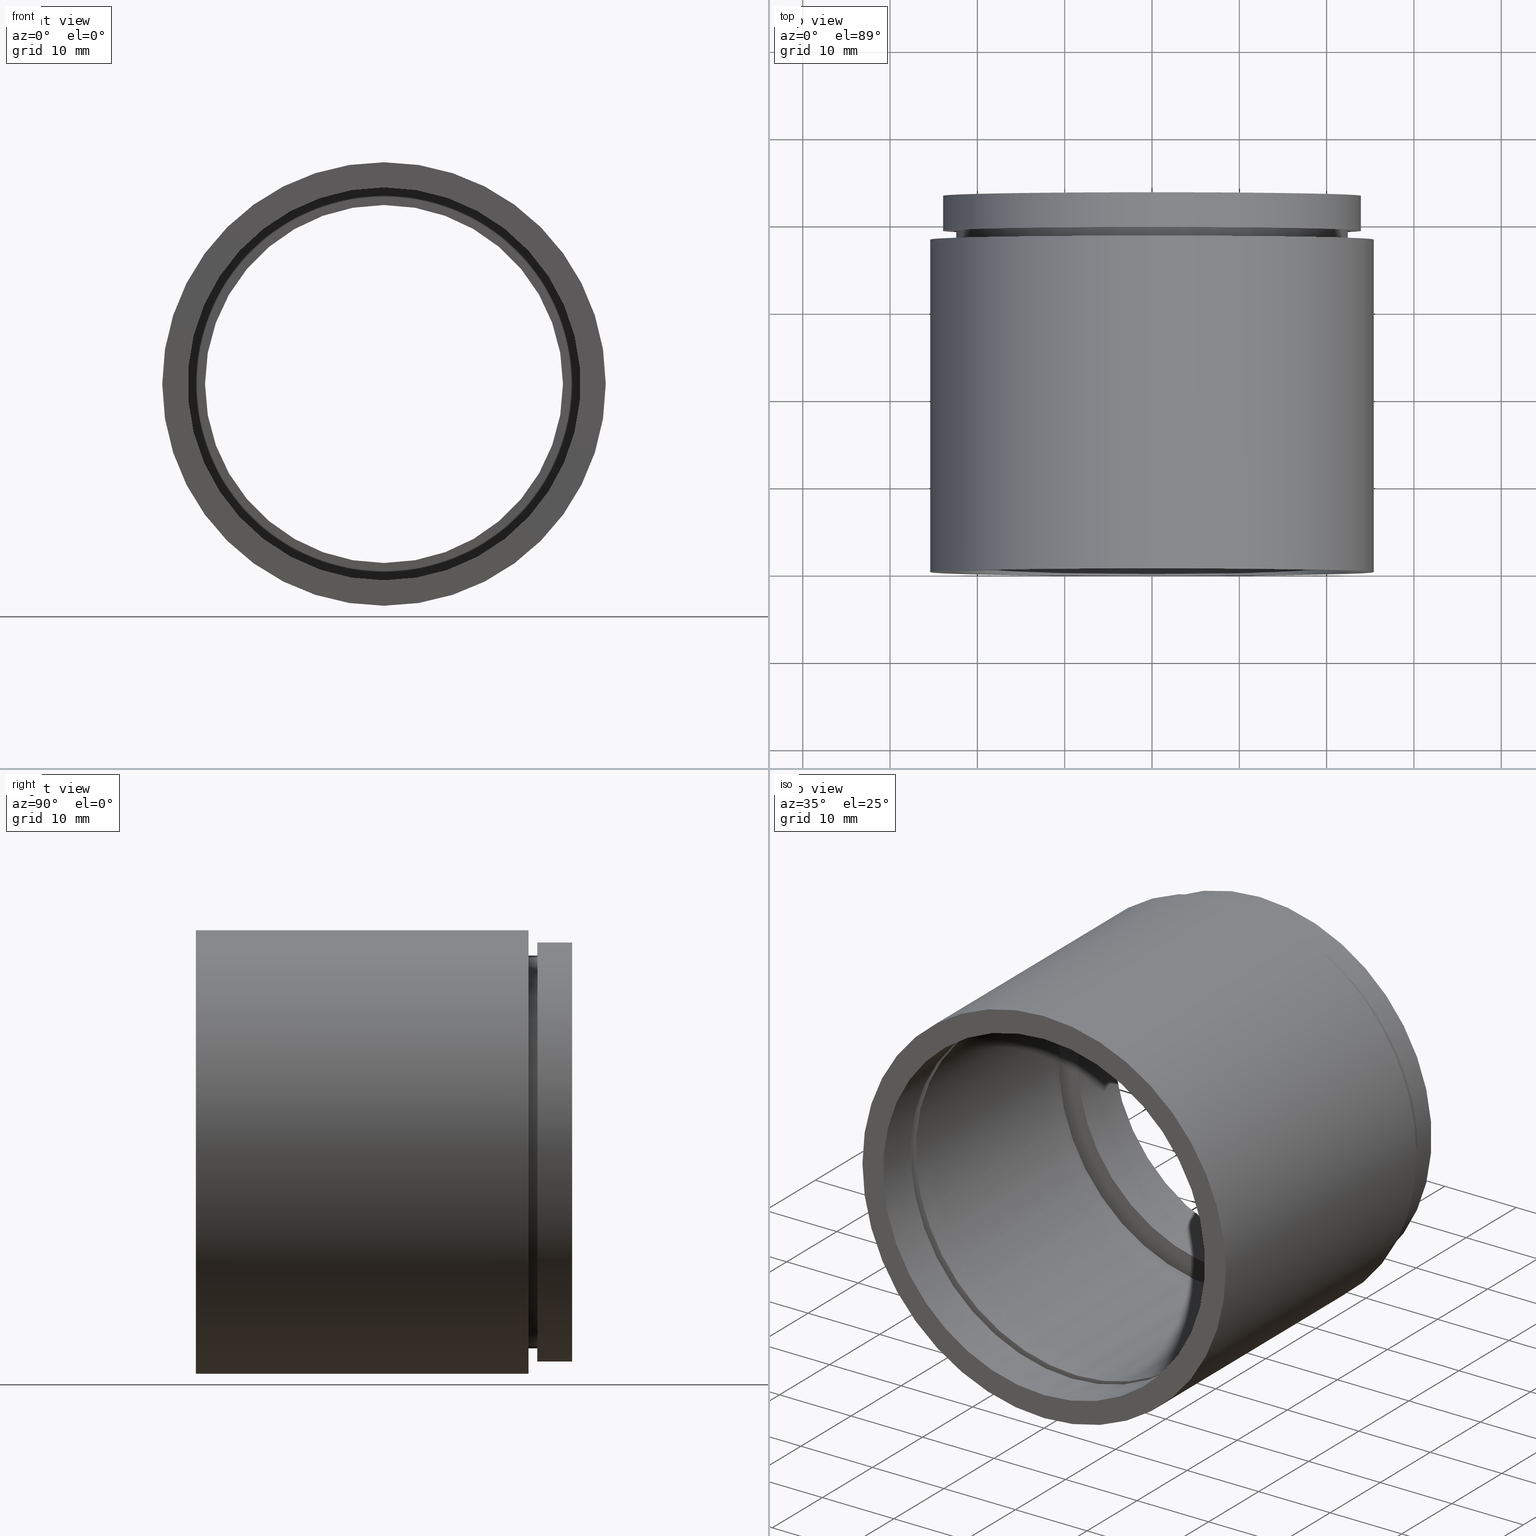
[diagram: canonical four-view strip — front | top / right | iso, engineering-drawing reading convention]
A machine part, canonical four-view strip (front | top / right | iso — engineering-drawing reading convention). The complete STEP part file that produces these views, byte-faithful:
ISO-10303-21;
HEADER;
FILE_DESCRIPTION (( 'STEP AP214' ),
    '1' );
FILE_NAME ('503013.STEP',
    '2019-09-04T08:31:47',
    ( '' ),
    ( '' ),
    'SwSTEP 2.0',
    'SolidWorks 2016',
    '' );
FILE_SCHEMA (( 'AUTOMOTIVE_DESIGN' ));
ENDSEC;

DATA;
#1 = ADVANCED_FACE ( 'NONE', ( #93, #112 ), #177, .F. ) ;
#2 = VECTOR ( 'NONE', #423, 1000.000000000000000 ) ;
#3 = ORIENTED_EDGE ( 'NONE', *, *, #67, .T. ) ;
#4 = VERTEX_POINT ( 'NONE', #107 ) ;
#5 = DIRECTION ( 'NONE',  ( -0.0000000000000000000, 1.000000000000000000, -0.0000000000000000000 ) ) ;
#6 = CARTESIAN_POINT ( 'NONE',  ( 0.0000000000000000000, 5.499999999999976900, 22.50000000000002100 ) ) ;
#7 = SURFACE_SIDE_STYLE ('',( #575 ) ) ;
#8 = EDGE_CURVE ( 'NONE', #137, #349, #341, .T. ) ;
#9 = EDGE_CURVE ( 'NONE', #356, #752, #155, .T. ) ;
#10 = PRESENTATION_STYLE_ASSIGNMENT (( #68 ) ) ;
#11 = ORIENTED_EDGE ( 'NONE', *, *, #230, .T. ) ;
#12 = SURFACE_SIDE_STYLE ('',( #29 ) ) ;
#13 = CARTESIAN_POINT ( 'NONE',  ( 0.0000000000000000000, 6.499999999999977800, 23.49999999999986500 ) ) ;
#14 = AXIS2_PLACEMENT_3D ( 'NONE', #87, #601, #226 ) ;
#15 = EDGE_CURVE ( 'NONE', #609, #4, #65, .T. ) ;
#16 = DIRECTION ( 'NONE',  ( -0.0000000000000000000, 1.000000000000000000, 0.0000000000000000000 ) ) ;
#17 = PLANE ( 'NONE',  #95 ) ;
#18 = FACE_BOUND ( 'NONE', #641, .T. ) ;
#19 = CARTESIAN_POINT ( 'NONE',  ( 2.877919977996263800E-015, 161.3761669434274500, -23.49999999999986500 ) ) ;
#20 = COLOUR_RGB ( '',1.000000000000000000, 1.000000000000000000, 1.000000000000000000 ) ;
#21 = CIRCLE ( 'NONE', #76, 22.50000000000002100 ) ;
#22 = ORIENTED_EDGE ( 'NONE', *, *, #649, .T. ) ;
#23 = AXIS2_PLACEMENT_3D ( 'NONE', #761, #5, #124 ) ;
#24 = ORIENTED_EDGE ( 'NONE', *, *, #218, .T. ) ;
#25 = CARTESIAN_POINT ( 'NONE',  ( 0.0000000000000000000, 35.09999999999999400, 0.0000000000000000000 ) ) ;
#26 = DIRECTION ( 'NONE',  ( 0.0000000000000000000, 0.0000000000000000000, 1.000000000000000000 ) ) ;
#27 = DIRECTION ( 'NONE',  ( 0.0000000000000000000, 0.0000000000000000000, 1.000000000000000000 ) ) ;
#28 = CARTESIAN_POINT ( 'NONE',  ( 0.0000000000000000000, 161.3761669434274500, 0.0000000000000000000 ) ) ;
#29 = SURFACE_STYLE_FILL_AREA ( #530 ) ;
#30 = LINE ( 'NONE', #545, #2 ) ;
#31 = CARTESIAN_POINT ( 'NONE',  ( 0.0000000000000000000, 39.09999999999999400, 0.0000000000000000000 ) ) ;
#32 = PRESENTATION_STYLE_ASSIGNMENT (( #78 ) ) ;
#33 = ORIENTED_EDGE ( 'NONE', *, *, #230, .F. ) ;
#34 = ORIENTED_EDGE ( 'NONE', *, *, #570, .T. ) ;
#35 = SURFACE_SIDE_STYLE ('',( #372 ) ) ;
#36 = ADVANCED_FACE ( 'NONE', ( #741 ), #384, .T. ) ;
#37 = MANIFOLD_SOLID_BREP ( '��ת1', #654 ) ;
#38 = DIRECTION ( 'NONE',  ( 0.0000000000000000000, 0.0000000000000000000, 1.000000000000000000 ) ) ;
#39 = AXIS2_PLACEMENT_3D ( 'NONE', #577, #508, #568 ) ;
#40 = STYLED_ITEM ( 'NONE', ( #246 ), #284 ) ;
#41 = DIRECTION ( 'NONE',  ( -0.0000000000000000000, 1.000000000000000000, -0.0000000000000000000 ) ) ;
#42 = CIRCLE ( 'NONE', #115, 22.50000000000002100 ) ;
#43 = CIRCLE ( 'NONE', #557, 22.50000000000002100 ) ;
#44 = AXIS2_PLACEMENT_3D ( 'NONE', #615, #235, #729 ) ;
#45 = ORIENTED_EDGE ( 'NONE', *, *, #8, .F. ) ;
#46 =( LENGTH_UNIT ( ) NAMED_UNIT ( * ) SI_UNIT ( .MILLI., .METRE. ) );
#47 = EDGE_LOOP ( 'NONE', ( #66, #762, #318, #506 ) ) ;
#48 = EDGE_CURVE ( 'NONE', #662, #83, #438, .T. ) ;
#49 = CARTESIAN_POINT ( 'NONE',  ( 0.0000000000000000000, 39.09999999999999400, 22.49999999999988600 ) ) ;
#50 = AXIS2_PLACEMENT_3D ( 'NONE', #381, #813, #754 ) ;
#51 = CIRCLE ( 'NONE', #216, 22.50000000000002100 ) ;
#52 = CIRCLE ( 'NONE', #343, 22.50000000000002100 ) ;
#53 = SURFACE_STYLE_FILL_AREA ( #325 ) ;
#54 = ORIENTED_EDGE ( 'NONE', *, *, #746, .T. ) ;
#55 = ORIENTED_EDGE ( 'NONE', *, *, #236, .T. ) ;
#56 = CARTESIAN_POINT ( 'NONE',  ( 0.0000000000000000000, 36.09999999999999400, 24.00000000000001400 ) ) ;
#57 = AXIS2_PLACEMENT_3D ( 'NONE', #403, #774, #271 ) ;
#58 = DIRECTION ( 'NONE',  ( -0.0000000000000000000, 1.000000000000000000, -0.0000000000000000000 ) ) ;
#59 = AXIS2_PLACEMENT_3D ( 'NONE', #114, #241, #253 ) ;
#60 = DIRECTION ( 'NONE',  ( 0.0000000000000000000, 0.0000000000000000000, 1.000000000000000000 ) ) ;
#61 = VECTOR ( 'NONE', #613, 1000.000000000000000 ) ;
#62 = SURFACE_SIDE_STYLE ('',( #799 ) ) ;
#63 = PRODUCT_DEFINITION ( 'δ֪', '', #324, #378 ) ;
#64 = ORIENTED_EDGE ( 'NONE', *, *, #772, .T. ) ;
#65 = CIRCLE ( 'NONE', #23, 24.00000000000001400 ) ;
#66 = ORIENTED_EDGE ( 'NONE', *, *, #218, .F. ) ;
#67 = EDGE_CURVE ( 'NONE', #83, #673, #538, .T. ) ;
#68 = SURFACE_STYLE_USAGE ( .BOTH. , #192 ) ;
#69 = COLOUR_RGB ( '',1.000000000000000000, 1.000000000000000000, 1.000000000000000000 ) ;
#70 = VECTOR ( 'NONE', #579, 1000.000000000000000 ) ;
#71 = ADVANCED_FACE ( 'NONE', ( #316 ), #699, .F. ) ;
#72 = CARTESIAN_POINT ( 'NONE',  ( 0.0000000000000000000, 161.3761669434274500, 0.0000000000000000000 ) ) ;
#73 = VERTEX_POINT ( 'NONE', #685 ) ;
#74 = EDGE_LOOP ( 'NONE', ( #225, #175 ) ) ;
#75 = CARTESIAN_POINT ( 'NONE',  ( 0.0000000000000000000, 161.3761669434274500, 0.0000000000000000000 ) ) ;
#76 = AXIS2_PLACEMENT_3D ( 'NONE', #362, #41, #105 ) ;
#77 = DIRECTION ( 'NONE',  ( -0.0000000000000000000, 1.000000000000000000, -0.0000000000000000000 ) ) ;
#78 = SURFACE_STYLE_USAGE ( .BOTH. , #638 ) ;
#79 = AXIS2_PLACEMENT_3D ( 'NONE', #764, #693, #695 ) ;
#80 = PRESENTATION_LAYER_ASSIGNMENT (  '', '', ( #40 ) ) ;
#81 = FACE_OUTER_BOUND ( 'NONE', #518, .T. ) ;
#82 = ORIENTED_EDGE ( 'NONE', *, *, #453, .F. ) ;
#83 = VERTEX_POINT ( 'NONE', #569 ) ;
#84 = ORIENTED_EDGE ( 'NONE', *, *, #649, .F. ) ;
#85 = AXIS2_PLACEMENT_3D ( 'NONE', #197, #572, #692 ) ;
#86 = EDGE_CURVE ( 'NONE', #702, #233, #515, .T. ) ;
#87 = CARTESIAN_POINT ( 'NONE',  ( 0.0000000000000000000, 161.3761669434274500, 0.0000000000000000000 ) ) ;
#88 = FILL_AREA_STYLE_COLOUR ( '', #493 ) ;
#89 = DIRECTION ( 'NONE',  ( 0.0000000000000000000, 0.0000000000000000000, 1.000000000000000000 ) ) ;
#90 = COLOUR_RGB ( '',1.000000000000000000, 1.000000000000000000, 1.000000000000000000 ) ;
#91 = EDGE_CURVE ( 'NONE', #702, #432, #640, .T. ) ;
#92 = ORIENTED_EDGE ( 'NONE', *, *, #707, .F. ) ;
#93 = FACE_BOUND ( 'NONE', #224, .T. ) ;
#94 = FILL_AREA_STYLE ('',( #219 ) ) ;
#95 = AXIS2_PLACEMENT_3D ( 'NONE', #647, #513, #410 ) ;
#96 = CARTESIAN_POINT ( 'NONE',  ( 0.0000000000000000000, 161.3761669434274500, 0.0000000000000000000 ) ) ;
#97 = CIRCLE ( 'NONE', #388, 24.00000000000001400 ) ;
#98 = AXIS2_PLACEMENT_3D ( 'NONE', #516, #704, #394 ) ;
#99 = ADVANCED_FACE ( 'NONE', ( #263, #223 ), #250, .F. ) ;
#100 = LINE ( 'NONE', #370, #61 ) ;
#101 = EDGE_CURVE ( 'NONE', #550, #4, #168, .T. ) ;
#102 = VERTEX_POINT ( 'NONE', #13 ) ;
#103 = ORIENTED_EDGE ( 'NONE', *, *, #612, .F. ) ;
#104 = EDGE_LOOP ( 'NONE', ( #624, #121 ) ) ;
#105 = DIRECTION ( 'NONE',  ( 0.0000000000000000000, 0.0000000000000000000, 1.000000000000000000 ) ) ;
#106 = STYLED_ITEM ( 'NONE', ( #414 ), #37 ) ;
#107 = CARTESIAN_POINT ( 'NONE',  ( 2.939152317953649500E-015, 36.09999999999999400, -24.00000000000001400 ) ) ;
#108 = CYLINDRICAL_SURFACE ( 'NONE', #242, 24.00000000000001400 ) ;
#109 = CYLINDRICAL_SURFACE ( 'NONE', #361, 22.50000000000002100 ) ;
#110 = FACE_OUTER_BOUND ( 'NONE', #724, .T. ) ;
#111 = DIRECTION ( 'NONE',  ( -0.0000000000000000000, 1.000000000000000000, -0.0000000000000000000 ) ) ;
#112 = FACE_OUTER_BOUND ( 'NONE', #807, .T. ) ;
#113 = ORIENTED_EDGE ( 'NONE', *, *, #48, .T. ) ;
#114 = CARTESIAN_POINT ( 'NONE',  ( 0.0000000000000000000, 161.3761669434274500, 0.0000000000000000000 ) ) ;
#115 = AXIS2_PLACEMENT_3D ( 'NONE', #364, #797, #619 ) ;
#116 =( LENGTH_UNIT ( ) NAMED_UNIT ( * ) SI_UNIT ( .MILLI., .METRE. ) );
#117 = CARTESIAN_POINT ( 'NONE',  ( 23.49999999999986500, 6.499999999999985800, 0.0000000000000000000 ) ) ;
#118 = ORIENTED_EDGE ( 'NONE', *, *, #707, .T. ) ;
#119 = VERTEX_POINT ( 'NONE', #336 ) ;
#120 = CARTESIAN_POINT ( 'NONE',  ( 0.0000000000000000000, 5.499999999999976900, 0.0000000000000000000 ) ) ;
#121 = ORIENTED_EDGE ( 'NONE', *, *, #350, .T. ) ;
#122 = CARTESIAN_POINT ( 'NONE',  ( 0.0000000000000000000, 161.3761669434274500, 22.49999999999988600 ) ) ;
#123 = AXIS2_PLACEMENT_3D ( 'NONE', #28, #295, #156 ) ;
#124 = DIRECTION ( 'NONE',  ( 0.0000000000000000000, 0.0000000000000000000, 1.000000000000000000 ) ) ;
#125 = AXIS2_PLACEMENT_3D ( 'NONE', #532, #533, #721 ) ;
#126 = DIRECTION ( 'NONE',  ( 0.0000000000000000000, 0.0000000000000000000, 1.000000000000000000 ) ) ;
#127 = EDGE_LOOP ( 'NONE', ( #606, #635 ) ) ;
#128 = DIRECTION ( 'NONE',  ( 0.0000000000000000000, 0.0000000000000000000, 1.000000000000000000 ) ) ;
#129 =( LENGTH_UNIT ( ) NAMED_UNIT ( * ) SI_UNIT ( .MILLI., .METRE. ) );
#130 = MECHANICAL_DESIGN_GEOMETRIC_PRESENTATION_REPRESENTATION (  '', ( #106 ), #502 ) ;
#131 = AXIS2_PLACEMENT_3D ( 'NONE', #393, #629, #126 ) ;
#132 = FACE_OUTER_BOUND ( 'NONE', #213, .T. ) ;
#133 = DIRECTION ( 'NONE',  ( 0.0000000000000000000, 0.0000000000000000000, 1.000000000000000000 ) ) ;
#134 =( NAMED_UNIT ( * ) SI_UNIT ( $, .STERADIAN. ) SOLID_ANGLE_UNIT ( ) );
#135 = VERTEX_POINT ( 'NONE', #590 ) ;
#136 = ORIENTED_EDGE ( 'NONE', *, *, #425, .T. ) ;
#137 = VERTEX_POINT ( 'NONE', #521 ) ;
#138 = DIRECTION ( 'NONE',  ( -0.0000000000000000000, 1.000000000000000000, -0.0000000000000000000 ) ) ;
#139 = CARTESIAN_POINT ( 'NONE',  ( 0.0000000000000000000, 39.09999999999999400, 0.0000000000000000000 ) ) ;
#140 = DIRECTION ( 'NONE',  ( -0.0000000000000000000, 1.000000000000000000, -0.0000000000000000000 ) ) ;
#141 = DIRECTION ( 'NONE',  ( -0.0000000000000000000, 1.000000000000000000, -0.0000000000000000000 ) ) ;
#142 = PRESENTATION_LAYER_ASSIGNMENT (  '', '', ( #106 ) ) ;
#143 = CIRCLE ( 'NONE', #44, 22.50000000000002100 ) ;
#144 = DIRECTION ( 'NONE',  ( -0.0000000000000000000, 1.000000000000000000, -0.0000000000000000000 ) ) ;
#145 = ADVANCED_FACE ( 'NONE', ( #328 ), #661, .F. ) ;
#146 = VERTEX_POINT ( 'NONE', #203 ) ;
#147 = SURFACE_STYLE_USAGE ( .BOTH. , #12 ) ;
#148 = SURFACE_STYLE_USAGE ( .BOTH. , #656 ) ;
#149 = ADVANCED_FACE ( 'NONE', ( #616, #474 ), #455, .F. ) ;
#150 = DIRECTION ( 'NONE',  ( 1.000000000000000000, 0.0000000000000000000, 0.0000000000000000000 ) ) ;
#151 = SURFACE_STYLE_USAGE ( .BOTH. , #35 ) ;
#152 = DIRECTION ( 'NONE',  ( -0.0000000000000000000, 1.000000000000000000, -0.0000000000000000000 ) ) ;
#153 = DIRECTION ( 'NONE',  ( 0.0000000000000000000, 0.0000000000000000000, 1.000000000000000000 ) ) ;
#154 = ORIENTED_EDGE ( 'NONE', *, *, #181, .F. ) ;
#155 = CIRCLE ( 'NONE', #658, 20.50000000000001400 ) ;
#156 = DIRECTION ( 'NONE',  ( 0.0000000000000000000, 0.0000000000000000000, 1.000000000000000000 ) ) ;
#157 = ORIENTED_EDGE ( 'NONE', *, *, #720, .T. ) ;
#158 = ADVANCED_FACE ( 'NONE', ( #554, #459 ), #17, .F. ) ;
#159 = PRODUCT_CONTEXT ( 'NONE', #717, 'mechanical' ) ;
#160 = DIRECTION ( 'NONE',  ( -0.0000000000000000000, 1.000000000000000000, -0.0000000000000000000 ) ) ;
#161 = AXIS2_PLACEMENT_3D ( 'NONE', #345, #140, #206 ) ;
#162 = MECHANICAL_DESIGN_GEOMETRIC_PRESENTATION_REPRESENTATION (  '', ( #40 ), #251 ) ;
#163 =( NAMED_UNIT ( * ) PLANE_ANGLE_UNIT ( ) SI_UNIT ( $, .RADIAN. ) );
#164 = AXIS2_PLACEMENT_3D ( 'NONE', #499, #374, #377 ) ;
#165 = CIRCLE ( 'NONE', #610, 23.49999999999986500 ) ;
#166 = EDGE_CURVE ( 'NONE', #750, #252, #198, .T. ) ;
#167 = ORIENTED_EDGE ( 'NONE', *, *, #280, .F. ) ;
#168 = LINE ( 'NONE', #711, #70 ) ;
#169 = EDGE_LOOP ( 'NONE', ( #437, #642 ) ) ;
#170 = CARTESIAN_POINT ( 'NONE',  ( 2.510525938252076100E-015, 36.09999999999999400, -20.50000000000001800 ) ) ;
#171 = AXIS2_PLACEMENT_3D ( 'NONE', #511, #697, #60 ) ;
#172 = DIRECTION ( 'NONE',  ( 0.0000000000000000000, 0.0000000000000000000, 1.000000000000000000 ) ) ;
#173 = PRODUCT_RELATED_PRODUCT_CATEGORY ( 'part', '', ( #694 ) ) ;
#174 = CYLINDRICAL_SURFACE ( 'NONE', #706, 20.50000000000001800 ) ;
#175 = ORIENTED_EDGE ( 'NONE', *, *, #315, .T. ) ;
#176 = ORIENTED_EDGE ( 'NONE', *, *, #811, .T. ) ;
#177 = PLANE ( 'NONE',  #645 ) ;
#178 = AXIS2_PLACEMENT_3D ( 'NONE', #139, #708, #767 ) ;
#179 = UNCERTAINTY_MEASURE_WITH_UNIT (LENGTH_MEASURE( 1.000000000000000100E-005 ), #129, 'distance_accuracy_value', 'NONE');
#180 = CARTESIAN_POINT ( 'NONE',  ( 0.0000000000000000000, 161.3761669434274500, 0.0000000000000000000 ) ) ;
#181 = EDGE_CURVE ( 'NONE', #662, #300, #298, .T. ) ;
#182 = SURFACE_STYLE_USAGE ( .BOTH. , #62 ) ;
#183 = FACE_OUTER_BOUND ( 'NONE', #424, .T. ) ;
#184 = CARTESIAN_POINT ( 'NONE',  ( 0.0000000000000000000, 38.09999999999999400, 0.0000000000000000000 ) ) ;
#185 = VECTOR ( 'NONE', #111, 1000.000000000000000 ) ;
#186 = ORIENTED_EDGE ( 'NONE', *, *, #9, .T. ) ;
#187 = CARTESIAN_POINT ( 'NONE',  ( 2.755455298081547100E-015, -2.775557561562891400E-014, -22.50000000000002100 ) ) ;
#188 = ORIENTED_EDGE ( 'NONE', *, *, #578, .F. ) ;
#189 = DIRECTION ( 'NONE',  ( 0.0000000000000000000, 0.0000000000000000000, 1.000000000000000000 ) ) ;
#190 = MECHANICAL_DESIGN_GEOMETRIC_PRESENTATION_REPRESENTATION (  '', ( #755 ), #286 ) ;
#191 = CARTESIAN_POINT ( 'NONE',  ( 0.0000000000000000000, 38.09999999999999400, 22.49999999999988600 ) ) ;
#192 = SURFACE_SIDE_STYLE ('',( #53 ) ) ;
#193 = DIRECTION ( 'NONE',  ( 0.0000000000000000000, 0.0000000000000000000, 1.000000000000000000 ) ) ;
#194 = EDGE_CURVE ( 'NONE', #586, #690, #373, .T. ) ;
#195 = DIRECTION ( 'NONE',  ( 0.0000000000000000000, 0.0000000000000000000, 1.000000000000000000 ) ) ;
#196 = LINE ( 'NONE', #766, #363 ) ;
#197 = CARTESIAN_POINT ( 'NONE',  ( 24.00000000000001400, 39.09999999999999400, 0.0000000000000000000 ) ) ;
#198 = CIRCLE ( 'NONE', #57, 25.40000000000001600 ) ;
#199 = AXIS2_PLACEMENT_3D ( 'NONE', #117, #494, #436 ) ;
#200 = EDGE_LOOP ( 'NONE', ( #375, #34 ) ) ;
#201 = VERTEX_POINT ( 'NONE', #401 ) ;
#202 = DIRECTION ( 'NONE',  ( -0.0000000000000000000, 1.000000000000000000, -0.0000000000000000000 ) ) ;
#203 = CARTESIAN_POINT ( 'NONE',  ( 0.0000000000000000000, 35.09999999999999400, 24.00000000000001400 ) ) ;
#204 = FILL_AREA_STYLE ('',( #587 ) ) ;
#205 = AXIS2_PLACEMENT_3D ( 'NONE', #779, #16, #282 ) ;
#206 = DIRECTION ( 'NONE',  ( 0.0000000000000000000, 0.0000000000000000000, 1.000000000000000000 ) ) ;
#207 =( GEOMETRIC_REPRESENTATION_CONTEXT ( 3 ) GLOBAL_UNCERTAINTY_ASSIGNED_CONTEXT ( ( #730 ) ) GLOBAL_UNIT_ASSIGNED_CONTEXT ( ( #418, #473, #413 ) ) REPRESENTATION_CONTEXT ( 'NONE', 'WORKASPACE' ) );
#208 = CIRCLE ( 'NONE', #161, 24.00000000000001400 ) ;
#209 =( NAMED_UNIT ( * ) PLANE_ANGLE_UNIT ( ) SI_UNIT ( $, .RADIAN. ) );
#210 = LINE ( 'NONE', #482, #338 ) ;
#211 = DIRECTION ( 'NONE',  ( 0.0000000000000000000, 0.0000000000000000000, 1.000000000000000000 ) ) ;
#212 = EDGE_LOOP ( 'NONE', ( #82, #740 ) ) ;
#213 = EDGE_LOOP ( 'NONE', ( #489, #539 ) ) ;
#214 = ORIENTED_EDGE ( 'NONE', *, *, #280, .T. ) ;
#215 = CARTESIAN_POINT ( 'NONE',  ( 0.0000000000000000000, 5.499999999999976900, 0.0000000000000000000 ) ) ;
#216 = AXIS2_PLACEMENT_3D ( 'NONE', #763, #634, #193 ) ;
#217 = ADVANCED_FACE ( 'NONE', ( #110 ), #748, .F. ) ;
#218 = EDGE_CURVE ( 'NONE', #671, #586, #367, .T. ) ;
#219 = FILL_AREA_STYLE_COLOUR ( '', #731 ) ;
#220 = FACE_OUTER_BOUND ( 'NONE', #462, .T. ) ;
#221 = SURFACE_STYLE_FILL_AREA ( #94 ) ;
#222 =( LENGTH_UNIT ( ) NAMED_UNIT ( * ) SI_UNIT ( .MILLI., .METRE. ) );
#223 = FACE_OUTER_BOUND ( 'NONE', #74, .T. ) ;
#224 = EDGE_LOOP ( 'NONE', ( #562, #733 ) ) ;
#225 = ORIENTED_EDGE ( 'NONE', *, *, #166, .T. ) ;
#226 = DIRECTION ( 'NONE',  ( 0.0000000000000000000, 0.0000000000000000000, 1.000000000000000000 ) ) ;
#227 = EDGE_CURVE ( 'NONE', #135, #299, #670, .T. ) ;
#228 = AXIS2_PLACEMENT_3D ( 'NONE', #402, #153, #150 ) ;
#229 =( NAMED_UNIT ( * ) SI_UNIT ( $, .STERADIAN. ) SOLID_ANGLE_UNIT ( ) );
#230 = EDGE_CURVE ( 'NONE', #432, #607, #448, .T. ) ;
#231 = FACE_BOUND ( 'NONE', #248, .T. ) ;
#232 = ORIENTED_EDGE ( 'NONE', *, *, #91, .T. ) ;
#233 = VERTEX_POINT ( 'NONE', #275 ) ;
#234 = ORIENTED_EDGE ( 'NONE', *, *, #86, .F. ) ;
#235 = DIRECTION ( 'NONE',  ( -0.0000000000000000000, 1.000000000000000000, -0.0000000000000000000 ) ) ;
#236 = EDGE_CURVE ( 'NONE', #201, #73, #43, .T. ) ;
#237 = SHAPE_DEFINITION_REPRESENTATION ( #354, #484 ) ;
#238 = FACE_BOUND ( 'NONE', #212, .T. ) ;
#239 = FILL_AREA_STYLE ('',( #543 ) ) ;
#240 = EDGE_LOOP ( 'NONE', ( #475, #22, #232, #368 ) ) ;
#241 = DIRECTION ( 'NONE',  ( -0.0000000000000000000, 1.000000000000000000, -0.0000000000000000000 ) ) ;
#242 = AXIS2_PLACEMENT_3D ( 'NONE', #611, #309, #735 ) ;
#243 = SURFACE_STYLE_USAGE ( .BOTH. , #498 ) ;
#244 = CARTESIAN_POINT ( 'NONE',  ( 2.755455298081547100E-015, 5.499999999999976900, -22.50000000000002100 ) ) ;
#245 = SURFACE_STYLE_FILL_AREA ( #239 ) ;
#246 = PRESENTATION_STYLE_ASSIGNMENT (( #148 ) ) ;
#247 = DIRECTION ( 'NONE',  ( -0.0000000000000000000, 1.000000000000000000, -0.0000000000000000000 ) ) ;
#248 = EDGE_LOOP ( 'NONE', ( #55, #565 ) ) ;
#249 = VERTEX_POINT ( 'NONE', #597 ) ;
#250 = PLANE ( 'NONE',  #50 ) ;
#251 =( GEOMETRIC_REPRESENTATION_CONTEXT ( 3 ) GLOBAL_UNCERTAINTY_ASSIGNED_CONTEXT ( ( #678 ) ) GLOBAL_UNIT_ASSIGNED_CONTEXT ( ( #222, #785, #287 ) ) REPRESENTATION_CONTEXT ( 'NONE', 'WORKASPACE' ) );
#252 = VERTEX_POINT ( 'NONE', #782 ) ;
#253 = DIRECTION ( 'NONE',  ( 0.0000000000000000000, 0.0000000000000000000, 1.000000000000000000 ) ) ;
#254 = UNCERTAINTY_MEASURE_WITH_UNIT (LENGTH_MEASURE( 1.000000000000000100E-005 ), #406, 'distance_accuracy_value', 'NONE');
#255 = DIRECTION ( 'NONE',  ( -0.0000000000000000000, 1.000000000000000000, -0.0000000000000000000 ) ) ;
#256 = AXIS2_PLACEMENT_3D ( 'NONE', #454, #385, #445 ) ;
#257 = ADVANCED_FACE ( 'NONE', ( #404 ), #710, .F. ) ;
#258 = CARTESIAN_POINT ( 'NONE',  ( 0.0000000000000000000, 43.09999999999998700, 0.0000000000000000000 ) ) ;
#259 = CARTESIAN_POINT ( 'NONE',  ( 0.0000000000000000000, -2.775557561562891400E-014, 0.0000000000000000000 ) ) ;
#260 = CIRCLE ( 'NONE', #79, 24.00000000000001400 ) ;
#261 = DIRECTION ( 'NONE',  ( -0.0000000000000000000, 1.000000000000000000, -0.0000000000000000000 ) ) ;
#262 = CYLINDRICAL_SURFACE ( 'NONE', #125, 23.49999999999986500 ) ;
#263 = FACE_BOUND ( 'NONE', #277, .T. ) ;
#264 = ORIENTED_EDGE ( 'NONE', *, *, #746, .F. ) ;
#265 = EDGE_LOOP ( 'NONE', ( #617, #366, #801, #793 ) ) ;
#266 =( NAMED_UNIT ( * ) PLANE_ANGLE_UNIT ( ) SI_UNIT ( $, .RADIAN. ) );
#267 = CARTESIAN_POINT ( 'NONE',  ( 0.0000000000000000000, 38.09999999999999400, 25.40000000000001600 ) ) ;
#268 =( LENGTH_UNIT ( ) NAMED_UNIT ( * ) SI_UNIT ( .MILLI., .METRE. ) );
#269 = CARTESIAN_POINT ( 'NONE',  ( 0.0000000000000000000, 43.09999999999998700, 20.50000000000001400 ) ) ;
#270 = PRESENTATION_LAYER_ASSIGNMENT (  '', '', ( #630 ) ) ;
#271 = DIRECTION ( 'NONE',  ( 0.0000000000000000000, 0.0000000000000000000, 1.000000000000000000 ) ) ;
#272 = VECTOR ( 'NONE', #688, 1000.000000000000000 ) ;
#273 = COLOUR_RGB ( '',1.000000000000000000, 1.000000000000000000, 1.000000000000000000 ) ;
#274 = FACE_OUTER_BOUND ( 'NONE', #265, .T. ) ;
#275 = CARTESIAN_POINT ( 'NONE',  ( 2.755455298081530600E-015, 38.09999999999999400, -22.49999999999988600 ) ) ;
#276 = AXIS2_PLACEMENT_3D ( 'NONE', #259, #77, #392 ) ;
#277 = EDGE_LOOP ( 'NONE', ( #234, #84 ) ) ;
#278 = EDGE_LOOP ( 'NONE', ( #770, #214, #386, #188 ) ) ;
#279 = ORIENTED_EDGE ( 'NONE', *, *, #689, .F. ) ;
#280 = EDGE_CURVE ( 'NONE', #249, #252, #503, .T. ) ;
#281 =( NAMED_UNIT ( * ) SI_UNIT ( $, .STERADIAN. ) SOLID_ANGLE_UNIT ( ) );
#282 = DIRECTION ( 'NONE',  ( 0.0000000000000000000, 0.0000000000000000000, 1.000000000000000000 ) ) ;
#283 = DIRECTION ( 'NONE',  ( -0.0000000000000000000, 1.000000000000000000, -0.0000000000000000000 ) ) ;
#284 = ADVANCED_FACE ( 'NONE', ( #571 ), #109, .F. ) ;
#285 =( NAMED_UNIT ( * ) PLANE_ANGLE_UNIT ( ) SI_UNIT ( $, .RADIAN. ) );
#286 =( GEOMETRIC_REPRESENTATION_CONTEXT ( 3 ) GLOBAL_UNCERTAINTY_ASSIGNED_CONTEXT ( ( #716 ) ) GLOBAL_UNIT_ASSIGNED_CONTEXT ( ( #329, #439, #560 ) ) REPRESENTATION_CONTEXT ( 'NONE', 'WORKASPACE' ) );
#287 =( NAMED_UNIT ( * ) SI_UNIT ( $, .STERADIAN. ) SOLID_ANGLE_UNIT ( ) );
#288 = CIRCLE ( 'NONE', #648, 23.49999999999986500 ) ;
#289 =( LENGTH_UNIT ( ) NAMED_UNIT ( * ) SI_UNIT ( .MILLI., .METRE. ) );
#290 = EDGE_LOOP ( 'NONE', ( #450, #308, #331, #317 ) ) ;
#291 = DIRECTION ( 'NONE',  ( -0.0000000000000000000, 1.000000000000000000, -0.0000000000000000000 ) ) ;
#292 = EDGE_CURVE ( 'NONE', #349, #356, #596, .T. ) ;
#293 = CARTESIAN_POINT ( 'NONE',  ( 2.510525938252076100E-015, 161.3761669434274500, -20.50000000000001800 ) ) ;
#294 =( GEOMETRIC_REPRESENTATION_CONTEXT ( 3 ) GLOBAL_UNCERTAINTY_ASSIGNED_CONTEXT ( ( #705 ) ) GLOBAL_UNIT_ASSIGNED_CONTEXT ( ( #805, #313, #745 ) ) REPRESENTATION_CONTEXT ( 'NONE', 'WORKASPACE' ) );
#295 = DIRECTION ( 'NONE',  ( -0.0000000000000000000, 1.000000000000000000, -0.0000000000000000000 ) ) ;
#296 = PRESENTATION_STYLE_ASSIGNMENT (( #243 ) ) ;
#297 = CARTESIAN_POINT ( 'NONE',  ( 2.877919977996263800E-015, 6.499999999999977800, -23.49999999999986500 ) ) ;
#298 = CIRCLE ( 'NONE', #178, 24.00000000000001400 ) ;
#299 = VERTEX_POINT ( 'NONE', #297 ) ;
#300 = VERTEX_POINT ( 'NONE', #352 ) ;
#301 = STYLED_ITEM ( 'NONE', ( #355 ), #484 ) ;
#302 = EDGE_CURVE ( 'NONE', #486, #431, #52, .T. ) ;
#303 = DIRECTION ( 'NONE',  ( -0.0000000000000000000, 1.000000000000000000, -0.0000000000000000000 ) ) ;
#304 = AXIS2_PLACEMENT_3D ( 'NONE', #305, #666, #736 ) ;
#305 = CARTESIAN_POINT ( 'NONE',  ( 0.0000000000000000000, 161.3761669434274500, 0.0000000000000000000 ) ) ;
#306 = VECTOR ( 'NONE', #480, 1000.000000000000000 ) ;
#307 = ORIENTED_EDGE ( 'NONE', *, *, #582, .T. ) ;
#308 = ORIENTED_EDGE ( 'NONE', *, *, #101, .T. ) ;
#309 = DIRECTION ( 'NONE',  ( -0.0000000000000000000, 1.000000000000000000, -0.0000000000000000000 ) ) ;
#310 = UNCERTAINTY_MEASURE_WITH_UNIT (LENGTH_MEASURE( 1.000000000000000100E-005 ), #268, 'distance_accuracy_value', 'NONE');
#311 = CARTESIAN_POINT ( 'NONE',  ( 22.50000000000002100, 5.499999999999985800, 0.0000000000000000000 ) ) ;
#312 = FACE_BOUND ( 'NONE', #528, .T. ) ;
#313 =( NAMED_UNIT ( * ) PLANE_ANGLE_UNIT ( ) SI_UNIT ( $, .RADIAN. ) );
#314 = LINE ( 'NONE', #743, #679 ) ;
#315 = EDGE_CURVE ( 'NONE', #252, #750, #553, .T. ) ;
#316 = FACE_OUTER_BOUND ( 'NONE', #47, .T. ) ;
#317 = ORIENTED_EDGE ( 'NONE', *, *, #382, .F. ) ;
#318 = ORIENTED_EDGE ( 'NONE', *, *, #369, .T. ) ;
#319 = DIRECTION ( 'NONE',  ( -0.0000000000000000000, 1.000000000000000000, -0.0000000000000000000 ) ) ;
#320 = EDGE_LOOP ( 'NONE', ( #176, #3 ) ) ;
#321 = AXIS2_PLACEMENT_3D ( 'NONE', #464, #463, #342 ) ;
#322 = DIRECTION ( 'NONE',  ( 0.0000000000000000000, 0.0000000000000000000, 1.000000000000000000 ) ) ;
#323 = DIRECTION ( 'NONE',  ( -0.0000000000000000000, 1.000000000000000000, -0.0000000000000000000 ) ) ;
#324 = PRODUCT_DEFINITION_FORMATION_WITH_SPECIFIED_SOURCE ( '�κ�', '', #694, .NOT_KNOWN. ) ;
#325 = FILL_AREA_STYLE ('',( #509 ) ) ;
#326 = DIRECTION ( 'NONE',  ( -0.0000000000000000000, 1.000000000000000000, -0.0000000000000000000 ) ) ;
#327 = EDGE_LOOP ( 'NONE', ( #264, #24, #540, #691 ) ) ;
#328 = FACE_OUTER_BOUND ( 'NONE', #290, .T. ) ;
#329 =( LENGTH_UNIT ( ) NAMED_UNIT ( * ) SI_UNIT ( .MILLI., .METRE. ) );
#330 = AXIS2_PLACEMENT_3D ( 'NONE', #75, #138, #133 ) ;
#331 = ORIENTED_EDGE ( 'NONE', *, *, #778, .T. ) ;
#332 = ADVANCED_FACE ( 'NONE', ( #274 ), #768, .F. ) ;
#333 = DIRECTION ( 'NONE',  ( -0.0000000000000000000, 1.000000000000000000, -0.0000000000000000000 ) ) ;
#334 = ADVANCED_FACE ( 'NONE', ( #81 ), #262, .F. ) ;
#335 = CIRCLE ( 'NONE', #98, 22.49999999999988600 ) ;
#336 = CARTESIAN_POINT ( 'NONE',  ( 0.0000000000000000000, 5.499999999999976900, 23.49999999999986500 ) ) ;
#337 = STYLED_ITEM ( 'NONE', ( #696 ), #786 ) ;
#338 = VECTOR ( 'NONE', #675, 1000.000000000000000 ) ;
#339 =( NAMED_UNIT ( * ) SI_UNIT ( $, .STERADIAN. ) SOLID_ANGLE_UNIT ( ) );
#340 = ORIENTED_EDGE ( 'NONE', *, *, #227, .T. ) ;
#341 = CIRCLE ( 'NONE', #131, 20.50000000000001800 ) ;
#342 = DIRECTION ( 'NONE',  ( 0.0000000000000000000, 0.0000000000000000000, 1.000000000000000000 ) ) ;
#343 = AXIS2_PLACEMENT_3D ( 'NONE', #25, #144, #27 ) ;
#344 = DIRECTION ( 'NONE',  ( 0.0000000000000000000, -0.0000000000000000000, -1.000000000000000000 ) ) ;
#345 = CARTESIAN_POINT ( 'NONE',  ( 0.0000000000000000000, 35.09999999999999400, 0.0000000000000000000 ) ) ;
#346 = DIRECTION ( 'NONE',  ( -0.0000000000000000000, 1.000000000000000000, -0.0000000000000000000 ) ) ;
#347 = MECHANICAL_DESIGN_GEOMETRIC_PRESENTATION_REPRESENTATION (  '', ( #337 ), #441 ) ;
#348 = EDGE_LOOP ( 'NONE', ( #548, #340, #307, #618 ) ) ;
#349 = VERTEX_POINT ( 'NONE', #170 ) ;
#350 = EDGE_CURVE ( 'NONE', #349, #137, #759, .T. ) ;
#351 = CARTESIAN_POINT ( 'NONE',  ( 0.0000000000000000000, -2.775557561562891400E-014, 0.0000000000000000000 ) ) ;
#352 = CARTESIAN_POINT ( 'NONE',  ( 0.0000000000000000000, 39.09999999999999400, 24.00000000000001400 ) ) ;
#353 = CARTESIAN_POINT ( 'NONE',  ( 2.510525938252075700E-015, 43.09999999999998700, -20.50000000000001400 ) ) ;
#354 = PRODUCT_DEFINITION_SHAPE ( 'NONE', 'NONE',  #63 ) ;
#355 = PRESENTATION_STYLE_ASSIGNMENT (( #147 ) ) ;
#356 = VERTEX_POINT ( 'NONE', #353 ) ;
#357 = ORIENTED_EDGE ( 'NONE', *, *, #302, .T. ) ;
#358 = FILL_AREA_STYLE ('',( #659 ) ) ;
#359 = ADVANCED_FACE ( 'NONE', ( #698 ), #546, .T. ) ;
#360 = MECHANICAL_DESIGN_GEOMETRIC_PRESENTATION_REPRESENTATION (  '', ( #630 ), #478 ) ;
#361 = AXIS2_PLACEMENT_3D ( 'NONE', #96, #291, #665 ) ;
#362 = CARTESIAN_POINT ( 'NONE',  ( 0.0000000000000000000, 6.499999999999977800, 0.0000000000000000000 ) ) ;
#363 = VECTOR ( 'NONE', #583, 1000.000000000000000 ) ;
#364 = CARTESIAN_POINT ( 'NONE',  ( 0.0000000000000000000, 5.499999999999976900, 0.0000000000000000000 ) ) ;
#365 = VECTOR ( 'NONE', #152, 1000.000000000000000 ) ;
#366 = ORIENTED_EDGE ( 'NONE', *, *, #784, .F. ) ;
#367 = LINE ( 'NONE', #398, #672 ) ;
#368 = ORIENTED_EDGE ( 'NONE', *, *, #772, .F. ) ;
#369 = EDGE_CURVE ( 'NONE', #771, #690, #100, .T. ) ;
#370 = CARTESIAN_POINT ( 'NONE',  ( 0.0000000000000000000, 161.3761669434274500, 22.50000000000002100 ) ) ;
#371 = FILL_AREA_STYLE ('',( #379 ) ) ;
#372 = SURFACE_STYLE_FILL_AREA ( #358 ) ;
#373 = CIRCLE ( 'NONE', #589, 22.50000000000002100 ) ;
#374 = DIRECTION ( 'NONE',  ( -0.0000000000000000000, 1.000000000000000000, -0.0000000000000000000 ) ) ;
#375 = ORIENTED_EDGE ( 'NONE', *, *, #689, .T. ) ;
#376 = AXIS2_PLACEMENT_3D ( 'NONE', #351, #522, #211 ) ;
#377 = DIRECTION ( 'NONE',  ( 0.0000000000000000000, 0.0000000000000000000, 1.000000000000000000 ) ) ;
#378 = PRODUCT_DEFINITION_CONTEXT ( 'detailed design', #605, 'design' ) ;
#379 = FILL_AREA_STYLE_COLOUR ( '', #273 ) ;
#380 = CARTESIAN_POINT ( 'NONE',  ( 0.0000000000000000000, 161.3761669434274500, 24.00000000000001400 ) ) ;
#381 = CARTESIAN_POINT ( 'NONE',  ( 25.40000000000001600, 38.09999999999998700, 0.0000000000000000000 ) ) ;
#382 = EDGE_CURVE ( 'NONE', #146, #609, #383, .T. ) ;
#383 = LINE ( 'NONE', #800, #185 ) ;
#384 = CYLINDRICAL_SURFACE ( 'NONE', #171, 25.40000000000002000 ) ;
#385 = DIRECTION ( 'NONE',  ( -0.0000000000000000000, 1.000000000000000000, -0.0000000000000000000 ) ) ;
#386 = ORIENTED_EDGE ( 'NONE', *, *, #166, .F. ) ;
#387 = CARTESIAN_POINT ( 'NONE',  ( 2.939152317953649500E-015, 161.3761669434274500, -24.00000000000001400 ) ) ;
#388 = AXIS2_PLACEMENT_3D ( 'NONE', #781, #775, #26 ) ;
#389 = DIRECTION ( 'NONE',  ( -0.0000000000000000000, 1.000000000000000000, -0.0000000000000000000 ) ) ;
#390 = EDGE_CURVE ( 'NONE', #73, #201, #21, .T. ) ;
#391 =( NAMED_UNIT ( * ) SI_UNIT ( $, .STERADIAN. ) SOLID_ANGLE_UNIT ( ) );
#392 = DIRECTION ( 'NONE',  ( 0.0000000000000000000, 0.0000000000000000000, 1.000000000000000000 ) ) ;
#393 = CARTESIAN_POINT ( 'NONE',  ( 0.0000000000000000000, 36.09999999999999400, 0.0000000000000000000 ) ) ;
#394 = DIRECTION ( 'NONE',  ( 0.0000000000000000000, 0.0000000000000000000, 1.000000000000000000 ) ) ;
#395 = VECTOR ( 'NONE', #333, 1000.000000000000000 ) ;
#396 = DIRECTION ( 'NONE',  ( -0.0000000000000000000, 1.000000000000000000, -0.0000000000000000000 ) ) ;
#397 = ORIENTED_EDGE ( 'NONE', *, *, #411, .T. ) ;
#398 = CARTESIAN_POINT ( 'NONE',  ( 2.755455298081547100E-015, 161.3761669434274500, -22.50000000000002100 ) ) ;
#399 = CARTESIAN_POINT ( 'NONE',  ( 0.0000000000000000000, 43.09999999999998700, 0.0000000000000000000 ) ) ;
#400 = PRESENTATION_LAYER_ASSIGNMENT (  '', '', ( #755 ) ) ;
#401 = CARTESIAN_POINT ( 'NONE',  ( 0.0000000000000000000, 6.499999999999977800, 22.50000000000002100 ) ) ;
#402 = CARTESIAN_POINT ( 'NONE',  ( 0.0000000000000000000, 0.0000000000000000000, 0.0000000000000000000 ) ) ;
#403 = CARTESIAN_POINT ( 'NONE',  ( 0.0000000000000000000, 38.09999999999999400, 0.0000000000000000000 ) ) ;
#404 = FACE_OUTER_BOUND ( 'NONE', #555, .T. ) ;
#405 = EDGE_CURVE ( 'NONE', #119, #102, #30, .T. ) ;
#406 =( LENGTH_UNIT ( ) NAMED_UNIT ( * ) SI_UNIT ( .MILLI., .METRE. ) );
#407 = ORIENTED_EDGE ( 'NONE', *, *, #612, .T. ) ;
#408 = ORIENTED_EDGE ( 'NONE', *, *, #676, .T. ) ;
#409 = ORIENTED_EDGE ( 'NONE', *, *, #578, .T. ) ;
#410 = DIRECTION ( 'NONE',  ( 0.0000000000000000000, 0.0000000000000000000, 1.000000000000000000 ) ) ;
#411 = EDGE_CURVE ( 'NONE', #771, #671, #143, .T. ) ;
#412 = DIRECTION ( 'NONE',  ( -0.0000000000000000000, 1.000000000000000000, -0.0000000000000000000 ) ) ;
#413 =( NAMED_UNIT ( * ) SI_UNIT ( $, .STERADIAN. ) SOLID_ANGLE_UNIT ( ) );
#414 = PRESENTATION_STYLE_ASSIGNMENT (( #753 ) ) ;
#415 = EDGE_CURVE ( 'NONE', #102, #299, #165, .T. ) ;
#416 = DIRECTION ( 'NONE',  ( -0.0000000000000000000, 1.000000000000000000, -0.0000000000000000000 ) ) ;
#417 = PRESENTATION_LAYER_ASSIGNMENT (  '', '', ( #301 ) ) ;
#418 =( LENGTH_UNIT ( ) NAMED_UNIT ( * ) SI_UNIT ( .MILLI., .METRE. ) );
#419 = CARTESIAN_POINT ( 'NONE',  ( 0.0000000000000000000, 36.09999999999999400, 0.0000000000000000000 ) ) ;
#420 = ADVANCED_FACE ( 'NONE', ( #632 ), #651, .T. ) ;
#421 = FACE_OUTER_BOUND ( 'NONE', #200, .T. ) ;
#422 = ORIENTED_EDGE ( 'NONE', *, *, #787, .T. ) ;
#423 = DIRECTION ( 'NONE',  ( -0.0000000000000000000, 1.000000000000000000, -0.0000000000000000000 ) ) ;
#424 = EDGE_LOOP ( 'NONE', ( #749, #136, #795, #681 ) ) ;
#425 = EDGE_CURVE ( 'NONE', #73, #431, #468, .T. ) ;
#426 = DIRECTION ( 'NONE',  ( 0.0000000000000000000, 0.0000000000000000000, 1.000000000000000000 ) ) ;
#427 = AXIS2_PLACEMENT_3D ( 'NONE', #72, #757, #769 ) ;
#428 = CIRCLE ( 'NONE', #467, 24.00000000000001400 ) ;
#429 = CARTESIAN_POINT ( 'NONE',  ( 2.755455298081547100E-015, 35.09999999999999400, -22.50000000000002100 ) ) ;
#430 = VECTOR ( 'NONE', #718, 1000.000000000000000 ) ;
#431 = VERTEX_POINT ( 'NONE', #429 ) ;
#432 = VERTEX_POINT ( 'NONE', #49 ) ;
#433 = FILL_AREA_STYLE ('',( #564 ) ) ;
#434 = CARTESIAN_POINT ( 'NONE',  ( 2.939152317953649500E-015, 35.09999999999999400, -24.00000000000001400 ) ) ;
#435 = COLOUR_RGB ( '',1.000000000000000000, 1.000000000000000000, 1.000000000000000000 ) ;
#436 = DIRECTION ( 'NONE',  ( 0.0000000000000000000, 0.0000000000000000000, 1.000000000000000000 ) ) ;
#437 = ORIENTED_EDGE ( 'NONE', *, *, #720, .F. ) ;
#438 = LINE ( 'NONE', #387, #395 ) ;
#439 =( NAMED_UNIT ( * ) PLANE_ANGLE_UNIT ( ) SI_UNIT ( $, .RADIAN. ) );
#440 = ORIENTED_EDGE ( 'NONE', *, *, #292, .T. ) ;
#441 =( GEOMETRIC_REPRESENTATION_CONTEXT ( 3 ) GLOBAL_UNCERTAINTY_ASSIGNED_CONTEXT ( ( #254 ) ) GLOBAL_UNIT_ASSIGNED_CONTEXT ( ( #406, #588, #339 ) ) REPRESENTATION_CONTEXT ( 'NONE', 'WORKASPACE' ) );
#442 = DIRECTION ( 'NONE',  ( -0.0000000000000000000, 1.000000000000000000, -0.0000000000000000000 ) ) ;
#443 = EDGE_CURVE ( 'NONE', #233, #607, #210, .T. ) ;
#444 = CARTESIAN_POINT ( 'NONE',  ( 0.0000000000000000000, 43.09999999999998700, 0.0000000000000000000 ) ) ;
#445 = DIRECTION ( 'NONE',  ( 0.0000000000000000000, 0.0000000000000000000, 1.000000000000000000 ) ) ;
#446 = DIRECTION ( 'NONE',  ( 0.0000000000000000000, -0.0000000000000000000, -1.000000000000000000 ) ) ;
#447 = AXIS2_PLACEMENT_3D ( 'NONE', #627, #261, #189 ) ;
#448 = CIRCLE ( 'NONE', #520, 22.49999999999988600 ) ;
#449 = CARTESIAN_POINT ( 'NONE',  ( 0.0000000000000000000, -2.775557561562891400E-014, 22.50000000000002100 ) ) ;
#450 = ORIENTED_EDGE ( 'NONE', *, *, #802, .F. ) ;
#451 = EDGE_LOOP ( 'NONE', ( #773, #45, #422, #157 ) ) ;
#452 = FILL_AREA_STYLE_COLOUR ( '', #625 ) ;
#453 = EDGE_CURVE ( 'NONE', #690, #586, #42, .T. ) ;
#454 = CARTESIAN_POINT ( 'NONE',  ( 0.0000000000000000000, 36.09999999999999400, 0.0000000000000000000 ) ) ;
#455 = PLANE ( 'NONE',  #531 ) ;
#456 = MECHANICAL_DESIGN_GEOMETRIC_PRESENTATION_REPRESENTATION (  '', ( #301 ), #496 ) ;
#457 = CIRCLE ( 'NONE', #664, 22.49999999999988600 ) ;
#458 =( LENGTH_UNIT ( ) NAMED_UNIT ( * ) SI_UNIT ( .MILLI., .METRE. ) );
#459 = FACE_BOUND ( 'NONE', #104, .T. ) ;
#460 = CARTESIAN_POINT ( 'NONE',  ( 20.50000000000001400, 43.09999999999998700, 0.0000000000000000000 ) ) ;
#461 = ORIENTED_EDGE ( 'NONE', *, *, #86, .T. ) ;
#462 = EDGE_LOOP ( 'NONE', ( #713, #497, #407, #504 ) ) ;
#463 = DIRECTION ( 'NONE',  ( -0.0000000000000000000, 1.000000000000000000, -0.0000000000000000000 ) ) ;
#464 = CARTESIAN_POINT ( 'NONE',  ( 0.0000000000000000000, 161.3761669434274500, 0.0000000000000000000 ) ) ;
#465 = AXIS2_PLACEMENT_3D ( 'NONE', #500, #396, #505 ) ;
#466 =( NAMED_UNIT ( * ) SI_UNIT ( $, .STERADIAN. ) SOLID_ANGLE_UNIT ( ) );
#467 = AXIS2_PLACEMENT_3D ( 'NONE', #399, #141, #591 ) ;
#468 = LINE ( 'NONE', #483, #306 ) ;
#469 = APPLICATION_PROTOCOL_DEFINITION ( 'draft international standard', 'automotive_design', 1998, #717 ) ;
#470 = ORIENTED_EDGE ( 'NONE', *, *, #405, .T. ) ;
#471 = DIRECTION ( 'NONE',  ( 0.0000000000000000000, 0.0000000000000000000, 1.000000000000000000 ) ) ;
#472 = CIRCLE ( 'NONE', #164, 23.49999999999986500 ) ;
#473 =( NAMED_UNIT ( * ) PLANE_ANGLE_UNIT ( ) SI_UNIT ( $, .RADIAN. ) );
#474 = FACE_OUTER_BOUND ( 'NONE', #320, .T. ) ;
#475 = ORIENTED_EDGE ( 'NONE', *, *, #443, .F. ) ;
#476 = EDGE_LOOP ( 'NONE', ( #461, #479, #33, #663 ) ) ;
#477 = ADVANCED_FACE ( 'NONE', ( #780 ), #108, .T. ) ;
#478 =( GEOMETRIC_REPRESENTATION_CONTEXT ( 3 ) GLOBAL_UNCERTAINTY_ASSIGNED_CONTEXT ( ( #310 ) ) GLOBAL_UNIT_ASSIGNED_CONTEXT ( ( #268, #209, #281 ) ) REPRESENTATION_CONTEXT ( 'NONE', 'WORKASPACE' ) );
#479 = ORIENTED_EDGE ( 'NONE', *, *, #443, .T. ) ;
#480 = DIRECTION ( 'NONE',  ( -0.0000000000000000000, 1.000000000000000000, -0.0000000000000000000 ) ) ;
#481 = AXIS2_PLACEMENT_3D ( 'NONE', #419, #739, #426 ) ;
#482 = CARTESIAN_POINT ( 'NONE',  ( 2.755455298081530600E-015, 161.3761669434274500, -22.49999999999988600 ) ) ;
#483 = CARTESIAN_POINT ( 'NONE',  ( 2.755455298081547100E-015, 161.3761669434274500, -22.50000000000002100 ) ) ;
#484 = ADVANCED_BREP_SHAPE_REPRESENTATION ( '503013', ( #37, #228 ), #792 ) ;
#485 = LINE ( 'NONE', #751, #525 ) ;
#486 = VERTEX_POINT ( 'NONE', #810 ) ;
#487 = VECTOR ( 'NONE', #323, 1000.000000000000000 ) ;
#488 = CARTESIAN_POINT ( 'NONE',  ( 0.0000000000000000000, 6.499999999999977800, 0.0000000000000000000 ) ) ;
#489 = ORIENTED_EDGE ( 'NONE', *, *, #798, .F. ) ;
#490 = SURFACE_STYLE_USAGE ( .BOTH. , #608 ) ;
#491 =( NAMED_UNIT ( * ) PLANE_ANGLE_UNIT ( ) SI_UNIT ( $, .RADIAN. ) );
#492 = DIRECTION ( 'NONE',  ( 0.0000000000000000000, -0.0000000000000000000, -1.000000000000000000 ) ) ;
#493 = COLOUR_RGB ( '',1.000000000000000000, 1.000000000000000000, 1.000000000000000000 ) ;
#494 = DIRECTION ( 'NONE',  ( -0.0000000000000000000, 1.000000000000000000, 0.0000000000000000000 ) ) ;
#495 = COLOUR_RGB ( '',1.000000000000000000, 1.000000000000000000, 1.000000000000000000 ) ;
#496 =( GEOMETRIC_REPRESENTATION_CONTEXT ( 3 ) GLOBAL_UNCERTAINTY_ASSIGNED_CONTEXT ( ( #567 ) ) GLOBAL_UNIT_ASSIGNED_CONTEXT ( ( #458, #519, #134 ) ) REPRESENTATION_CONTEXT ( 'NONE', 'WORKASPACE' ) );
#497 = ORIENTED_EDGE ( 'NONE', *, *, #181, .T. ) ;
#498 = SURFACE_SIDE_STYLE ('',( #747 ) ) ;
#499 = CARTESIAN_POINT ( 'NONE',  ( 0.0000000000000000000, 6.499999999999977800, 0.0000000000000000000 ) ) ;
#500 = CARTESIAN_POINT ( 'NONE',  ( 0.0000000000000000000, 43.09999999999998700, 0.0000000000000000000 ) ) ;
#501 = DIRECTION ( 'NONE',  ( 0.0000000000000000000, 0.0000000000000000000, 1.000000000000000000 ) ) ;
#502 =( GEOMETRIC_REPRESENTATION_CONTEXT ( 3 ) GLOBAL_UNCERTAINTY_ASSIGNED_CONTEXT ( ( #179 ) ) GLOBAL_UNIT_ASSIGNED_CONTEXT ( ( #129, #266, #391 ) ) REPRESENTATION_CONTEXT ( 'NONE', 'WORKASPACE' ) );
#503 = LINE ( 'NONE', #600, #365 ) ;
#504 = ORIENTED_EDGE ( 'NONE', *, *, #67, .F. ) ;
#505 = DIRECTION ( 'NONE',  ( 0.0000000000000000000, 0.0000000000000000000, 1.000000000000000000 ) ) ;
#506 = ORIENTED_EDGE ( 'NONE', *, *, #453, .T. ) ;
#507 = STYLED_ITEM ( 'NONE', ( #687 ), #477 ) ;
#508 = DIRECTION ( 'NONE',  ( -0.0000000000000000000, 1.000000000000000000, -0.0000000000000000000 ) ) ;
#509 = FILL_AREA_STYLE_COLOUR ( '', #90 ) ;
#510 = CARTESIAN_POINT ( 'NONE',  ( 0.0000000000000000000, 43.09999999999998700, 24.00000000000001400 ) ) ;
#511 = CARTESIAN_POINT ( 'NONE',  ( 0.0000000000000000000, 161.3761669434274500, 0.0000000000000000000 ) ) ;
#512 = DIRECTION ( 'NONE',  ( 0.0000000000000000000, -1.000000000000000000, 0.0000000000000000000 ) ) ;
#513 = DIRECTION ( 'NONE',  ( -0.0000000000000000000, 1.000000000000000000, 0.0000000000000000000 ) ) ;
#514 = FACE_OUTER_BOUND ( 'NONE', #127, .T. ) ;
#515 = CIRCLE ( 'NONE', #549, 22.49999999999988600 ) ;
#516 = CARTESIAN_POINT ( 'NONE',  ( 0.0000000000000000000, 39.09999999999999400, 0.0000000000000000000 ) ) ;
#517 = ORIENTED_EDGE ( 'NONE', *, *, #315, .F. ) ;
#518 = EDGE_LOOP ( 'NONE', ( #808, #279, #470, #598 ) ) ;
#519 =( NAMED_UNIT ( * ) PLANE_ANGLE_UNIT ( ) SI_UNIT ( $, .RADIAN. ) );
#520 = AXIS2_PLACEMENT_3D ( 'NONE', #31, #416, #471 ) ;
#521 = CARTESIAN_POINT ( 'NONE',  ( 0.0000000000000000000, 36.09999999999999400, 20.50000000000001800 ) ) ;
#522 = DIRECTION ( 'NONE',  ( -0.0000000000000000000, 1.000000000000000000, -0.0000000000000000000 ) ) ;
#523 = AXIS2_PLACEMENT_3D ( 'NONE', #677, #160, #38 ) ;
#524 = CYLINDRICAL_SURFACE ( 'NONE', #719, 22.50000000000002100 ) ;
#525 = VECTOR ( 'NONE', #58, 1000.000000000000000 ) ;
#526 = FILL_AREA_STYLE ('',( #566 ) ) ;
#527 = DIRECTION ( 'NONE',  ( -0.0000000000000000000, 1.000000000000000000, -0.0000000000000000000 ) ) ;
#528 = EDGE_LOOP ( 'NONE', ( #11, #64 ) ) ;
#529 = ORIENTED_EDGE ( 'NONE', *, *, #778, .F. ) ;
#530 = FILL_AREA_STYLE ('',( #88 ) ) ;
#531 = AXIS2_PLACEMENT_3D ( 'NONE', #460, #765, #344 ) ;
#532 = CARTESIAN_POINT ( 'NONE',  ( 0.0000000000000000000, 161.3761669434274500, 0.0000000000000000000 ) ) ;
#533 = DIRECTION ( 'NONE',  ( -0.0000000000000000000, 1.000000000000000000, -0.0000000000000000000 ) ) ;
#534 = CIRCLE ( 'NONE', #541, 20.50000000000001400 ) ;
#535 = PRESENTATION_STYLE_ASSIGNMENT (( #151 ) ) ;
#536 = ADVANCED_FACE ( 'NONE', ( #514, #231 ), #806, .F. ) ;
#537 = EDGE_CURVE ( 'NONE', #201, #486, #485, .T. ) ;
#538 = CIRCLE ( 'NONE', #465, 24.00000000000001400 ) ;
#539 = ORIENTED_EDGE ( 'NONE', *, *, #676, .F. ) ;
#540 = ORIENTED_EDGE ( 'NONE', *, *, #194, .T. ) ;
#541 = AXIS2_PLACEMENT_3D ( 'NONE', #258, #389, #631 ) ;
#542 = DIRECTION ( 'NONE',  ( -0.0000000000000000000, 1.000000000000000000, -0.0000000000000000000 ) ) ;
#543 = FILL_AREA_STYLE_COLOUR ( '', #603 ) ;
#544 = FACE_OUTER_BOUND ( 'NONE', #451, .T. ) ;
#545 = CARTESIAN_POINT ( 'NONE',  ( 0.0000000000000000000, 161.3761669434274500, 23.49999999999986500 ) ) ;
#546 = CYLINDRICAL_SURFACE ( 'NONE', #304, 22.49999999999988600 ) ;
#547 = ORIENTED_EDGE ( 'NONE', *, *, #784, .T. ) ;
#548 = ORIENTED_EDGE ( 'NONE', *, *, #570, .F. ) ;
#549 = AXIS2_PLACEMENT_3D ( 'NONE', #184, #255, #501 ) ;
#550 = VERTEX_POINT ( 'NONE', #434 ) ;
#551 = PRESENTATION_LAYER_ASSIGNMENT (  '', '', ( #507 ) ) ;
#552 = FACE_OUTER_BOUND ( 'NONE', #626, .T. ) ;
#553 = CIRCLE ( 'NONE', #714, 25.40000000000001600 ) ;
#554 = FACE_OUTER_BOUND ( 'NONE', #723, .T. ) ;
#555 = EDGE_LOOP ( 'NONE', ( #584, #440, #186, #712 ) ) ;
#556 = DIRECTION ( 'NONE',  ( 0.0000000000000000000, 0.0000000000000000000, 1.000000000000000000 ) ) ;
#557 = AXIS2_PLACEMENT_3D ( 'NONE', #725, #542, #788 ) ;
#558 = CIRCLE ( 'NONE', #276, 22.50000000000002100 ) ;
#559 = CYLINDRICAL_SURFACE ( 'NONE', #59, 23.49999999999986500 ) ;
#560 =( NAMED_UNIT ( * ) SI_UNIT ( $, .STERADIAN. ) SOLID_ANGLE_UNIT ( ) );
#561 = MECHANICAL_DESIGN_GEOMETRIC_PRESENTATION_REPRESENTATION (  '', ( #507 ), #686 ) ;
#562 = ORIENTED_EDGE ( 'NONE', *, *, #302, .F. ) ;
#563 = EDGE_LOOP ( 'NONE', ( #167, #408, #409, #517 ) ) ;
#564 = FILL_AREA_STYLE_COLOUR ( '', #20 ) ;
#565 = ORIENTED_EDGE ( 'NONE', *, *, #390, .T. ) ;
#566 = FILL_AREA_STYLE_COLOUR ( '', #435 ) ;
#567 = UNCERTAINTY_MEASURE_WITH_UNIT (LENGTH_MEASURE( 1.000000000000000100E-005 ), #458, 'distance_accuracy_value', 'NONE');
#568 = DIRECTION ( 'NONE',  ( 0.0000000000000000000, 0.0000000000000000000, 1.000000000000000000 ) ) ;
#569 = CARTESIAN_POINT ( 'NONE',  ( 2.939152317953649500E-015, 43.09999999999998700, -24.00000000000001400 ) ) ;
#570 = EDGE_CURVE ( 'NONE', #135, #119, #288, .T. ) ;
#571 = FACE_OUTER_BOUND ( 'NONE', #327, .T. ) ;
#572 = DIRECTION ( 'NONE',  ( -0.0000000000000000000, 1.000000000000000000, 0.0000000000000000000 ) ) ;
#573 = DIRECTION ( 'NONE',  ( -0.0000000000000000000, 1.000000000000000000, -0.0000000000000000000 ) ) ;
#574 = EDGE_LOOP ( 'NONE', ( #118, #113, #643, #103 ) ) ;
#575 = SURFACE_STYLE_FILL_AREA ( #637 ) ;
#576 = ADVANCED_FACE ( 'NONE', ( #544 ), #174, .F. ) ;
#577 = CARTESIAN_POINT ( 'NONE',  ( 0.0000000000000000000, -2.775557561562891400E-014, 0.0000000000000000000 ) ) ;
#578 = EDGE_CURVE ( 'NONE', #732, #750, #314, .T. ) ;
#579 = DIRECTION ( 'NONE',  ( -0.0000000000000000000, 1.000000000000000000, -0.0000000000000000000 ) ) ;
#580 = DIRECTION ( 'NONE',  ( 0.0000000000000000000, 0.0000000000000000000, 1.000000000000000000 ) ) ;
#581 = PRESENTATION_LAYER_ASSIGNMENT (  '', '', ( #674 ) ) ;
#582 = EDGE_CURVE ( 'NONE', #299, #102, #472, .T. ) ;
#583 = DIRECTION ( 'NONE',  ( -0.0000000000000000000, 1.000000000000000000, -0.0000000000000000000 ) ) ;
#584 = ORIENTED_EDGE ( 'NONE', *, *, #350, .F. ) ;
#585 = UNCERTAINTY_MEASURE_WITH_UNIT (LENGTH_MEASURE( 1.000000000000000100E-005 ), #46, 'distance_accuracy_value', 'NONE');
#586 = VERTEX_POINT ( 'NONE', #244 ) ;
#587 = FILL_AREA_STYLE_COLOUR ( '', #495 ) ;
#588 =( NAMED_UNIT ( * ) PLANE_ANGLE_UNIT ( ) SI_UNIT ( $, .RADIAN. ) );
#589 = AXIS2_PLACEMENT_3D ( 'NONE', #215, #527, #650 ) ;
#590 = CARTESIAN_POINT ( 'NONE',  ( 2.877919977996263800E-015, 5.499999999999976900, -23.49999999999986500 ) ) ;
#591 = DIRECTION ( 'NONE',  ( 0.0000000000000000000, 0.0000000000000000000, 1.000000000000000000 ) ) ;
#592 = CARTESIAN_POINT ( 'NONE',  ( 0.0000000000000000000, 38.09999999999999400, 0.0000000000000000000 ) ) ;
#593 =( GEOMETRIC_REPRESENTATION_CONTEXT ( 3 ) GLOBAL_UNCERTAINTY_ASSIGNED_CONTEXT ( ( #756 ) ) GLOBAL_UNIT_ASSIGNED_CONTEXT ( ( #116, #491, #682 ) ) REPRESENTATION_CONTEXT ( 'NONE', 'WORKASPACE' ) );
#594 = ADVANCED_FACE ( 'NONE', ( #790 ), #559, .F. ) ;
#595 = CYLINDRICAL_SURFACE ( 'NONE', #321, 22.49999999999988600 ) ;
#596 = LINE ( 'NONE', #293, #430 ) ;
#597 = CARTESIAN_POINT ( 'NONE',  ( 3.110602869834279600E-015, -2.775557561562891400E-014, -25.40000000000002000 ) ) ;
#598 = ORIENTED_EDGE ( 'NONE', *, *, #415, .T. ) ;
#599 = ORIENTED_EDGE ( 'NONE', *, *, #425, .F. ) ;
#600 = CARTESIAN_POINT ( 'NONE',  ( 3.110602869834279600E-015, 161.3761669434274500, -25.40000000000002000 ) ) ;
#601 = DIRECTION ( 'NONE',  ( -0.0000000000000000000, 1.000000000000000000, -0.0000000000000000000 ) ) ;
#602 = ADVANCED_FACE ( 'NONE', ( #183 ), #524, .F. ) ;
#603 = COLOUR_RGB ( '',1.000000000000000000, 1.000000000000000000, 1.000000000000000000 ) ;
#604 = MECHANICAL_DESIGN_GEOMETRIC_PRESENTATION_REPRESENTATION (  '', ( #727 ), #207 ) ;
#605 = APPLICATION_CONTEXT ( 'automotive_design' ) ;
#606 = ORIENTED_EDGE ( 'NONE', *, *, #415, .F. ) ;
#607 = VERTEX_POINT ( 'NONE', #628 ) ;
#608 = SURFACE_SIDE_STYLE ('',( #245 ) ) ;
#609 = VERTEX_POINT ( 'NONE', #56 ) ;
#610 = AXIS2_PLACEMENT_3D ( 'NONE', #488, #303, #794 ) ;
#611 = CARTESIAN_POINT ( 'NONE',  ( 0.0000000000000000000, 161.3761669434274500, 0.0000000000000000000 ) ) ;
#612 = EDGE_CURVE ( 'NONE', #300, #673, #737, .T. ) ;
#613 = DIRECTION ( 'NONE',  ( -0.0000000000000000000, 1.000000000000000000, -0.0000000000000000000 ) ) ;
#614 = UNCERTAINTY_MEASURE_WITH_UNIT (LENGTH_MEASURE( 1.000000000000000100E-005 ), #289, 'distance_accuracy_value', 'NONE');
#615 = CARTESIAN_POINT ( 'NONE',  ( 0.0000000000000000000, -2.775557561562891400E-014, 0.0000000000000000000 ) ) ;
#616 = FACE_BOUND ( 'NONE', #169, .T. ) ;
#617 = ORIENTED_EDGE ( 'NONE', *, *, #101, .F. ) ;
#618 = ORIENTED_EDGE ( 'NONE', *, *, #405, .F. ) ;
#619 = DIRECTION ( 'NONE',  ( 0.0000000000000000000, 0.0000000000000000000, 1.000000000000000000 ) ) ;
#620 = PLANE ( 'NONE',  #777 ) ;
#621 = DIRECTION ( 'NONE',  ( 0.0000000000000000000, -1.000000000000000000, 0.0000000000000000000 ) ) ;
#622 = SURFACE_STYLE_FILL_AREA ( #526 ) ;
#623 = PRESENTATION_LAYER_ASSIGNMENT (  '', '', ( #633 ) ) ;
#624 = ORIENTED_EDGE ( 'NONE', *, *, #8, .T. ) ;
#625 = COLOUR_RGB ( '',1.000000000000000000, 1.000000000000000000, 1.000000000000000000 ) ;
#626 = EDGE_LOOP ( 'NONE', ( #92, #154 ) ) ;
#627 = CARTESIAN_POINT ( 'NONE',  ( 0.0000000000000000000, 161.3761669434274500, 0.0000000000000000000 ) ) ;
#628 = CARTESIAN_POINT ( 'NONE',  ( 2.755455298081530600E-015, 39.09999999999999400, -22.49999999999988600 ) ) ;
#629 = DIRECTION ( 'NONE',  ( -0.0000000000000000000, 1.000000000000000000, -0.0000000000000000000 ) ) ;
#630 = STYLED_ITEM ( 'NONE', ( #32 ), #217 ) ;
#631 = DIRECTION ( 'NONE',  ( 0.0000000000000000000, 0.0000000000000000000, 1.000000000000000000 ) ) ;
#632 = FACE_OUTER_BOUND ( 'NONE', #563, .T. ) ;
#633 = STYLED_ITEM ( 'NONE', ( #296 ), #576 ) ;
#634 = DIRECTION ( 'NONE',  ( -0.0000000000000000000, 1.000000000000000000, -0.0000000000000000000 ) ) ;
#635 = ORIENTED_EDGE ( 'NONE', *, *, #582, .F. ) ;
#636 = CARTESIAN_POINT ( 'NONE',  ( 0.0000000000000000000, 5.499999999999976900, 0.0000000000000000000 ) ) ;
#637 = FILL_AREA_STYLE ('',( #452 ) ) ;
#638 = SURFACE_SIDE_STYLE ('',( #680 ) ) ;
#639 = FACE_OUTER_BOUND ( 'NONE', #240, .T. ) ;
#640 = LINE ( 'NONE', #122, #487 ) ;
#641 = EDGE_LOOP ( 'NONE', ( #397, #54 ) ) ;
#642 = ORIENTED_EDGE ( 'NONE', *, *, #9, .F. ) ;
#643 = ORIENTED_EDGE ( 'NONE', *, *, #811, .F. ) ;
#644 = SURFACE_SIDE_STYLE ('',( #622 ) ) ;
#645 = AXIS2_PLACEMENT_3D ( 'NONE', #804, #621, #492 ) ;
#646 = SURFACE_STYLE_USAGE ( .BOTH. , #644 ) ;
#647 = CARTESIAN_POINT ( 'NONE',  ( 24.00000000000001400, 36.09999999999998000, 0.0000000000000000000 ) ) ;
#648 = AXIS2_PLACEMENT_3D ( 'NONE', #120, #684, #556 ) ;
#649 = EDGE_CURVE ( 'NONE', #233, #702, #457, .T. ) ;
#650 = DIRECTION ( 'NONE',  ( 0.0000000000000000000, 0.0000000000000000000, 1.000000000000000000 ) ) ;
#651 = CYLINDRICAL_SURFACE ( 'NONE', #523, 25.40000000000002000 ) ;
#652 = VECTOR ( 'NONE', #346, 1000.000000000000000 ) ;
#653 = PLANE ( 'NONE',  #205 ) ;
#654 = CLOSED_SHELL ( 'NONE', ( #359, #477, #257, #145, #602, #594, #284, #36, #99, #420, #796, #71, #657, #334, #536, #217, #1, #332, #158, #576, #149, #786, #722, #791 ) ) ;
#655 = ORIENTED_EDGE ( 'NONE', *, *, #15, .F. ) ;
#656 = SURFACE_SIDE_STYLE ('',( #221 ) ) ;
#657 = ADVANCED_FACE ( 'NONE', ( #238, #421 ), #620, .F. ) ;
#658 = AXIS2_PLACEMENT_3D ( 'NONE', #444, #573, #195 ) ;
#659 = FILL_AREA_STYLE_COLOUR ( '', #69 ) ;
#660 = CIRCLE ( 'NONE', #39, 25.40000000000002000 ) ;
#661 = CYLINDRICAL_SURFACE ( 'NONE', #330, 24.00000000000001400 ) ;
#662 = VERTEX_POINT ( 'NONE', #803 ) ;
#663 = ORIENTED_EDGE ( 'NONE', *, *, #91, .F. ) ;
#664 = AXIS2_PLACEMENT_3D ( 'NONE', #742, #202, #128 ) ;
#665 = DIRECTION ( 'NONE',  ( 0.0000000000000000000, 0.0000000000000000000, 1.000000000000000000 ) ) ;
#666 = DIRECTION ( 'NONE',  ( -0.0000000000000000000, 1.000000000000000000, -0.0000000000000000000 ) ) ;
#667 = CYLINDRICAL_SURFACE ( 'NONE', #427, 24.00000000000001400 ) ;
#668 = PRESENTATION_STYLE_ASSIGNMENT (( #182 ) ) ;
#669 = AXIS2_PLACEMENT_3D ( 'NONE', #703, #715, #776 ) ;
#670 = LINE ( 'NONE', #19, #652 ) ;
#671 = VERTEX_POINT ( 'NONE', #187 ) ;
#672 = VECTOR ( 'NONE', #283, 1000.000000000000000 ) ;
#673 = VERTEX_POINT ( 'NONE', #510 ) ;
#674 = STYLED_ITEM ( 'NONE', ( #668 ), #602 ) ;
#675 = DIRECTION ( 'NONE',  ( -0.0000000000000000000, 1.000000000000000000, -0.0000000000000000000 ) ) ;
#676 = EDGE_CURVE ( 'NONE', #249, #732, #660, .T. ) ;
#677 = CARTESIAN_POINT ( 'NONE',  ( 0.0000000000000000000, 161.3761669434274500, 0.0000000000000000000 ) ) ;
#678 = UNCERTAINTY_MEASURE_WITH_UNIT (LENGTH_MEASURE( 1.000000000000000100E-005 ), #222, 'distance_accuracy_value', 'NONE');
#679 = VECTOR ( 'NONE', #319, 1000.000000000000000 ) ;
#680 = SURFACE_STYLE_FILL_AREA ( #204 ) ;
#681 = ORIENTED_EDGE ( 'NONE', *, *, #537, .F. ) ;
#682 =( NAMED_UNIT ( * ) SI_UNIT ( $, .STERADIAN. ) SOLID_ANGLE_UNIT ( ) );
#683 = PRESENTATION_LAYER_ASSIGNMENT (  '', '', ( #727 ) ) ;
#684 = DIRECTION ( 'NONE',  ( -0.0000000000000000000, 1.000000000000000000, -0.0000000000000000000 ) ) ;
#685 = CARTESIAN_POINT ( 'NONE',  ( 2.755455298081547100E-015, 6.499999999999977800, -22.50000000000002100 ) ) ;
#686 =( GEOMETRIC_REPRESENTATION_CONTEXT ( 3 ) GLOBAL_UNCERTAINTY_ASSIGNED_CONTEXT ( ( #585 ) ) GLOBAL_UNIT_ASSIGNED_CONTEXT ( ( #46, #163, #229 ) ) REPRESENTATION_CONTEXT ( 'NONE', 'WORKASPACE' ) );
#687 = PRESENTATION_STYLE_ASSIGNMENT (( #490 ) ) ;
#688 = DIRECTION ( 'NONE',  ( -0.0000000000000000000, 1.000000000000000000, -0.0000000000000000000 ) ) ;
#689 = EDGE_CURVE ( 'NONE', #119, #135, #709, .T. ) ;
#690 = VERTEX_POINT ( 'NONE', #6 ) ;
#691 = ORIENTED_EDGE ( 'NONE', *, *, #369, .F. ) ;
#692 = DIRECTION ( 'NONE',  ( 0.0000000000000000000, 0.0000000000000000000, 1.000000000000000000 ) ) ;
#693 = DIRECTION ( 'NONE',  ( -0.0000000000000000000, 1.000000000000000000, -0.0000000000000000000 ) ) ;
#694 = PRODUCT ( '503013', '503013', '', ( #159 ) ) ;
#695 = DIRECTION ( 'NONE',  ( 0.0000000000000000000, 0.0000000000000000000, 1.000000000000000000 ) ) ;
#696 = PRESENTATION_STYLE_ASSIGNMENT (( #646 ) ) ;
#697 = DIRECTION ( 'NONE',  ( -0.0000000000000000000, 1.000000000000000000, -0.0000000000000000000 ) ) ;
#698 = FACE_OUTER_BOUND ( 'NONE', #476, .T. ) ;
#699 = CYLINDRICAL_SURFACE ( 'NONE', #447, 22.50000000000002100 ) ;
#700 = PLANE ( 'NONE',  #85 ) ;
#701 = ORIENTED_EDGE ( 'NONE', *, *, #802, .T. ) ;
#702 = VERTEX_POINT ( 'NONE', #191 ) ;
#703 = CARTESIAN_POINT ( 'NONE',  ( 0.0000000000000000000, 161.3761669434274500, 0.0000000000000000000 ) ) ;
#704 = DIRECTION ( 'NONE',  ( -0.0000000000000000000, 1.000000000000000000, -0.0000000000000000000 ) ) ;
#705 = UNCERTAINTY_MEASURE_WITH_UNIT (LENGTH_MEASURE( 1.000000000000000100E-005 ), #805, 'distance_accuracy_value', 'NONE');
#706 = AXIS2_PLACEMENT_3D ( 'NONE', #812, #442, #322 ) ;
#707 = EDGE_CURVE ( 'NONE', #300, #662, #260, .T. ) ;
#708 = DIRECTION ( 'NONE',  ( -0.0000000000000000000, 1.000000000000000000, -0.0000000000000000000 ) ) ;
#709 = CIRCLE ( 'NONE', #758, 23.49999999999986500 ) ;
#710 = CYLINDRICAL_SURFACE ( 'NONE', #123, 20.50000000000001800 ) ;
#711 = CARTESIAN_POINT ( 'NONE',  ( 2.939152317953649500E-015, 161.3761669434274500, -24.00000000000001400 ) ) ;
#712 = ORIENTED_EDGE ( 'NONE', *, *, #787, .F. ) ;
#713 = ORIENTED_EDGE ( 'NONE', *, *, #48, .F. ) ;
#714 = AXIS2_PLACEMENT_3D ( 'NONE', #592, #412, #89 ) ;
#715 = DIRECTION ( 'NONE',  ( -0.0000000000000000000, 1.000000000000000000, -0.0000000000000000000 ) ) ;
#716 = UNCERTAINTY_MEASURE_WITH_UNIT (LENGTH_MEASURE( 1.000000000000000100E-005 ), #329, 'distance_accuracy_value', 'NONE');
#717 = APPLICATION_CONTEXT ( 'automotive_design' ) ;
#718 = DIRECTION ( 'NONE',  ( -0.0000000000000000000, 1.000000000000000000, -0.0000000000000000000 ) ) ;
#719 = AXIS2_PLACEMENT_3D ( 'NONE', #180, #247, #172 ) ;
#720 = EDGE_CURVE ( 'NONE', #752, #356, #534, .T. ) ;
#721 = DIRECTION ( 'NONE',  ( 0.0000000000000000000, 0.0000000000000000000, 1.000000000000000000 ) ) ;
#722 = ADVANCED_FACE ( 'NONE', ( #552, #312 ), #700, .F. ) ;
#723 = EDGE_LOOP ( 'NONE', ( #655, #529 ) ) ;
#724 = EDGE_LOOP ( 'NONE', ( #599, #734, #783, #357 ) ) ;
#725 = CARTESIAN_POINT ( 'NONE',  ( 0.0000000000000000000, 6.499999999999977800, 0.0000000000000000000 ) ) ;
#726 = APPLICATION_PROTOCOL_DEFINITION ( 'draft international standard', 'automotive_design', 1998, #605 ) ;
#727 = STYLED_ITEM ( 'NONE', ( #535 ), #257 ) ;
#728 = CIRCLE ( 'NONE', #256, 24.00000000000001400 ) ;
#729 = DIRECTION ( 'NONE',  ( 0.0000000000000000000, 0.0000000000000000000, 1.000000000000000000 ) ) ;
#730 = UNCERTAINTY_MEASURE_WITH_UNIT (LENGTH_MEASURE( 1.000000000000000100E-005 ), #418, 'distance_accuracy_value', 'NONE');
#731 = COLOUR_RGB ( '',1.000000000000000000, 1.000000000000000000, 1.000000000000000000 ) ;
#732 = VERTEX_POINT ( 'NONE', #760 ) ;
#733 = ORIENTED_EDGE ( 'NONE', *, *, #738, .F. ) ;
#734 = ORIENTED_EDGE ( 'NONE', *, *, #236, .F. ) ;
#735 = DIRECTION ( 'NONE',  ( 0.0000000000000000000, 0.0000000000000000000, 1.000000000000000000 ) ) ;
#736 = DIRECTION ( 'NONE',  ( 0.0000000000000000000, 0.0000000000000000000, 1.000000000000000000 ) ) ;
#737 = LINE ( 'NONE', #380, #272 ) ;
#738 = EDGE_CURVE ( 'NONE', #431, #486, #51, .T. ) ;
#739 = DIRECTION ( 'NONE',  ( -0.0000000000000000000, 1.000000000000000000, -0.0000000000000000000 ) ) ;
#740 = ORIENTED_EDGE ( 'NONE', *, *, #194, .F. ) ;
#741 = FACE_OUTER_BOUND ( 'NONE', #278, .T. ) ;
#742 = CARTESIAN_POINT ( 'NONE',  ( 0.0000000000000000000, 38.09999999999999400, 0.0000000000000000000 ) ) ;
#743 = CARTESIAN_POINT ( 'NONE',  ( 0.0000000000000000000, 161.3761669434274500, 25.40000000000002000 ) ) ;
#744 = PRESENTATION_LAYER_ASSIGNMENT (  '', '', ( #337 ) ) ;
#745 =( NAMED_UNIT ( * ) SI_UNIT ( $, .STERADIAN. ) SOLID_ANGLE_UNIT ( ) );
#746 = EDGE_CURVE ( 'NONE', #671, #771, #558, .T. ) ;
#747 = SURFACE_STYLE_FILL_AREA ( #371 ) ;
#748 = CYLINDRICAL_SURFACE ( 'NONE', #669, 22.50000000000002100 ) ;
#749 = ORIENTED_EDGE ( 'NONE', *, *, #390, .F. ) ;
#750 = VERTEX_POINT ( 'NONE', #267 ) ;
#751 = CARTESIAN_POINT ( 'NONE',  ( 0.0000000000000000000, 161.3761669434274500, 22.50000000000002100 ) ) ;
#752 = VERTEX_POINT ( 'NONE', #269 ) ;
#753 = SURFACE_STYLE_USAGE ( .BOTH. , #7 ) ;
#754 = DIRECTION ( 'NONE',  ( 0.0000000000000000000, -0.0000000000000000000, -1.000000000000000000 ) ) ;
#755 = STYLED_ITEM ( 'NONE', ( #10 ), #71 ) ;
#756 = UNCERTAINTY_MEASURE_WITH_UNIT (LENGTH_MEASURE( 1.000000000000000100E-005 ), #116, 'distance_accuracy_value', 'NONE');
#757 = DIRECTION ( 'NONE',  ( -0.0000000000000000000, 1.000000000000000000, -0.0000000000000000000 ) ) ;
#758 = AXIS2_PLACEMENT_3D ( 'NONE', #636, #326, #580 ) ;
#759 = CIRCLE ( 'NONE', #481, 20.50000000000001800 ) ;
#760 = CARTESIAN_POINT ( 'NONE',  ( 0.0000000000000000000, -2.775557561562891400E-014, 25.40000000000002000 ) ) ;
#761 = CARTESIAN_POINT ( 'NONE',  ( 0.0000000000000000000, 36.09999999999999400, 0.0000000000000000000 ) ) ;
#762 = ORIENTED_EDGE ( 'NONE', *, *, #411, .F. ) ;
#763 = CARTESIAN_POINT ( 'NONE',  ( 0.0000000000000000000, 35.09999999999999400, 0.0000000000000000000 ) ) ;
#764 = CARTESIAN_POINT ( 'NONE',  ( 0.0000000000000000000, 39.09999999999999400, 0.0000000000000000000 ) ) ;
#765 = DIRECTION ( 'NONE',  ( 0.0000000000000000000, -1.000000000000000000, 0.0000000000000000000 ) ) ;
#766 = CARTESIAN_POINT ( 'NONE',  ( 0.0000000000000000000, 161.3761669434274500, 20.50000000000001800 ) ) ;
#767 = DIRECTION ( 'NONE',  ( 0.0000000000000000000, 0.0000000000000000000, 1.000000000000000000 ) ) ;
#768 = CYLINDRICAL_SURFACE ( 'NONE', #14, 24.00000000000001400 ) ;
#769 = DIRECTION ( 'NONE',  ( 0.0000000000000000000, 0.0000000000000000000, 1.000000000000000000 ) ) ;
#770 = ORIENTED_EDGE ( 'NONE', *, *, #798, .T. ) ;
#771 = VERTEX_POINT ( 'NONE', #449 ) ;
#772 = EDGE_CURVE ( 'NONE', #607, #432, #335, .T. ) ;
#773 = ORIENTED_EDGE ( 'NONE', *, *, #292, .F. ) ;
#774 = DIRECTION ( 'NONE',  ( -0.0000000000000000000, 1.000000000000000000, -0.0000000000000000000 ) ) ;
#775 = DIRECTION ( 'NONE',  ( -0.0000000000000000000, 1.000000000000000000, -0.0000000000000000000 ) ) ;
#776 = DIRECTION ( 'NONE',  ( 0.0000000000000000000, 0.0000000000000000000, 1.000000000000000000 ) ) ;
#777 = AXIS2_PLACEMENT_3D ( 'NONE', #311, #512, #446 ) ;
#778 = EDGE_CURVE ( 'NONE', #4, #609, #728, .T. ) ;
#779 = CARTESIAN_POINT ( 'NONE',  ( 25.40000000000002000, -1.460226537307042600E-014, 0.0000000000000000000 ) ) ;
#780 = FACE_OUTER_BOUND ( 'NONE', #574, .T. ) ;
#781 = CARTESIAN_POINT ( 'NONE',  ( 0.0000000000000000000, 35.09999999999999400, 0.0000000000000000000 ) ) ;
#782 = CARTESIAN_POINT ( 'NONE',  ( 3.110602869834279200E-015, 38.09999999999999400, -25.40000000000001600 ) ) ;
#783 = ORIENTED_EDGE ( 'NONE', *, *, #537, .T. ) ;
#784 = EDGE_CURVE ( 'NONE', #146, #550, #208, .T. ) ;
#785 =( NAMED_UNIT ( * ) PLANE_ANGLE_UNIT ( ) SI_UNIT ( $, .RADIAN. ) );
#786 = ADVANCED_FACE ( 'NONE', ( #220 ), #667, .T. ) ;
#787 = EDGE_CURVE ( 'NONE', #137, #752, #196, .T. ) ;
#788 = DIRECTION ( 'NONE',  ( 0.0000000000000000000, 0.0000000000000000000, 1.000000000000000000 ) ) ;
#789 = CIRCLE ( 'NONE', #376, 25.40000000000002000 ) ;
#790 = FACE_OUTER_BOUND ( 'NONE', #348, .T. ) ;
#791 = ADVANCED_FACE ( 'NONE', ( #639 ), #595, .T. ) ;
#792 =( GEOMETRIC_REPRESENTATION_CONTEXT ( 3 ) GLOBAL_UNCERTAINTY_ASSIGNED_CONTEXT ( ( #614 ) ) GLOBAL_UNIT_ASSIGNED_CONTEXT ( ( #289, #285, #466 ) ) REPRESENTATION_CONTEXT ( 'NONE', 'WORKASPACE' ) );
#793 = ORIENTED_EDGE ( 'NONE', *, *, #15, .T. ) ;
#794 = DIRECTION ( 'NONE',  ( 0.0000000000000000000, 0.0000000000000000000, 1.000000000000000000 ) ) ;
#795 = ORIENTED_EDGE ( 'NONE', *, *, #738, .T. ) ;
#796 = ADVANCED_FACE ( 'NONE', ( #132, #18 ), #653, .F. ) ;
#797 = DIRECTION ( 'NONE',  ( -0.0000000000000000000, 1.000000000000000000, -0.0000000000000000000 ) ) ;
#798 = EDGE_CURVE ( 'NONE', #732, #249, #789, .T. ) ;
#799 = SURFACE_STYLE_FILL_AREA ( #433 ) ;
#800 = CARTESIAN_POINT ( 'NONE',  ( 0.0000000000000000000, 161.3761669434274500, 24.00000000000001400 ) ) ;
#801 = ORIENTED_EDGE ( 'NONE', *, *, #382, .T. ) ;
#802 = EDGE_CURVE ( 'NONE', #550, #146, #97, .T. ) ;
#803 = CARTESIAN_POINT ( 'NONE',  ( 2.939152317953649500E-015, 39.09999999999999400, -24.00000000000001400 ) ) ;
#804 = CARTESIAN_POINT ( 'NONE',  ( 22.50000000000002100, 35.09999999999998000, 0.0000000000000000000 ) ) ;
#805 =( LENGTH_UNIT ( ) NAMED_UNIT ( * ) SI_UNIT ( .MILLI., .METRE. ) );
#806 = PLANE ( 'NONE',  #199 ) ;
#807 = EDGE_LOOP ( 'NONE', ( #547, #701 ) ) ;
#808 = ORIENTED_EDGE ( 'NONE', *, *, #227, .F. ) ;
#809 = MECHANICAL_DESIGN_GEOMETRIC_PRESENTATION_REPRESENTATION (  '', ( #633 ), #593 ) ;
#810 = CARTESIAN_POINT ( 'NONE',  ( 0.0000000000000000000, 35.09999999999999400, 22.50000000000002100 ) ) ;
#811 = EDGE_CURVE ( 'NONE', #673, #83, #428, .T. ) ;
#812 = CARTESIAN_POINT ( 'NONE',  ( 0.0000000000000000000, 161.3761669434274500, 0.0000000000000000000 ) ) ;
#813 = DIRECTION ( 'NONE',  ( 0.0000000000000000000, -1.000000000000000000, 0.0000000000000000000 ) ) ;
#814 = MECHANICAL_DESIGN_GEOMETRIC_PRESENTATION_REPRESENTATION (  '', ( #674 ), #294 ) ;
ENDSEC;
END-ISO-10303-21;
